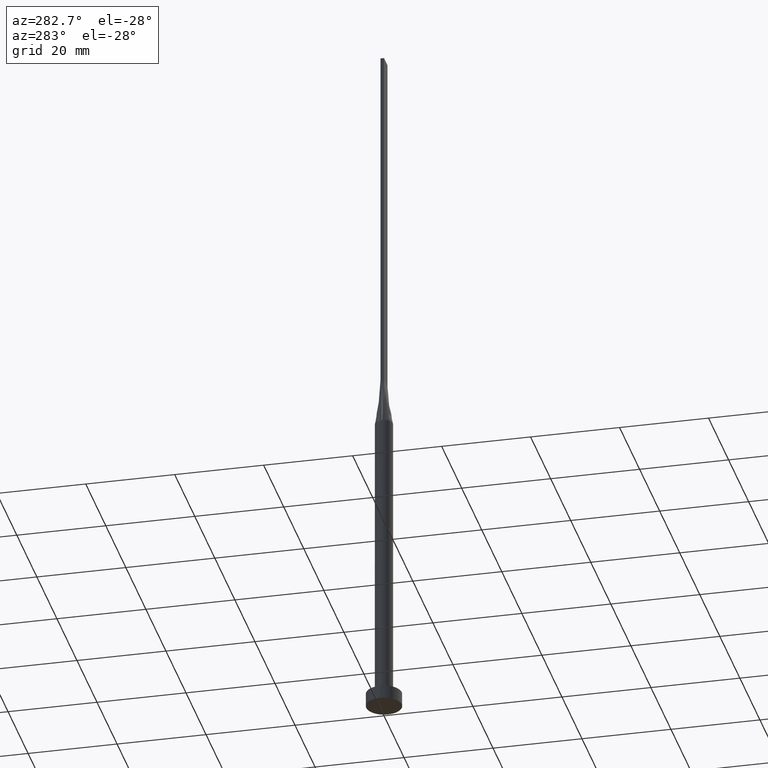
[diagram: clean part render]
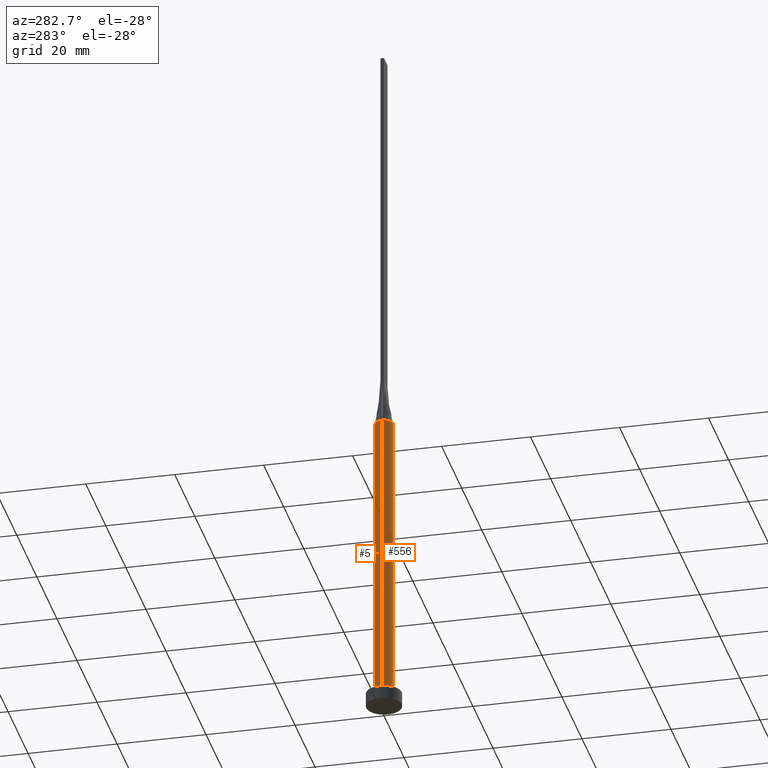
[diagram: same view with one multi-face feature highlighted, each face labeled with its STEP entity id]
A machine part, auxiliary view. The highlighted faces form ONE feature: a constant-radius fillet chain: 2 tangent blend faces with common blend radius 2 mm. The faces share edges in the B-rep.
Their STEP definitions:
[1] entity #5 (Cylinder):
#2 = DIRECTION ( 'NONE',  ( 1.000000000000000000, 0.000000000000000000, 0.000000000000000000 ) ) ;
#5 = ADVANCED_FACE ( 'NONE', ( #320 ), #195, .T. ) ;
#6 = EDGE_CURVE ( 'NONE', #53, #36, #255, .T. ) ;
#11 = LINE ( 'NONE', #559, #203 ) ;
#12 = EDGE_CURVE ( 'NONE', #16, #36, #151, .T. ) ;
#13 = DIRECTION ( 'NONE',  ( -0.000000000000000000, -0.000000000000000000, -1.000000000000000000 ) ) ;
#16 = VERTEX_POINT ( 'NONE', #97 ) ;
#23 = VERTEX_POINT ( 'NONE', #363 ) ;
#36 = VERTEX_POINT ( 'NONE', #535 ) ;
#44 = CARTESIAN_POINT ( 'NONE',  ( 1.209404336647714073, 1.609323485403446830, 70.00000000000001421 ) ) ;
#49 = CARTESIAN_POINT ( 'NONE',  ( 1.949877516600953875, 0.4456865912299994847, 70.00000000000000000 ) ) ;
#52 = DIRECTION ( 'NONE',  ( -0.000000000000000000, -0.000000000000000000, -1.000000000000000000 ) ) ;
#53 = VERTEX_POINT ( 'NONE', #566 ) ;
#57 = CARTESIAN_POINT ( 'NONE',  ( -1.669156890509896796, 1.119033439449084399, 70.00000000000001421 ) ) ;
#69 = ORIENTED_EDGE ( 'NONE', *, *, #6, .T. ) ;
#75 = EDGE_LOOP ( 'NONE', ( #420, #230, #69, #544, #271, #176 ) ) ;
#85 = CARTESIAN_POINT ( 'NONE',  ( 1.542259513637948443, 1.293837904363074998, 70.00000000000000000 ) ) ;
#97 = CARTESIAN_POINT ( 'NONE',  ( -1.999683952654101704, -4.787247324473225831E-16, 70.00000000000000000 ) ) ;
#102 = CARTESIAN_POINT ( 'NONE',  ( 0.000000000000000000, 0.000000000000000000, 70.00000000000000000 ) ) ;
#104 = CIRCLE ( 'NONE', #520, 2.000000000000000000 ) ;
#107 = CARTESIAN_POINT ( 'NONE',  ( -2.000000000000000000, 0.000000000000000000, 70.00000000000000000 ) ) ;
#116 = EDGE_CURVE ( 'NONE', #505, #23, #516, .T. ) ;
#139 = DIRECTION ( 'NONE',  ( 0.000000000000000000, 0.000000000000000000, 1.000000000000000000 ) ) ;
#150 = CARTESIAN_POINT ( 'NONE',  ( -1.209404336647713851, 1.609323485403446830, 70.00000000000001421 ) ) ;
#151 = LINE ( 'NONE', #107, #514 ) ;
#156 = CARTESIAN_POINT ( 'NONE',  ( -1.949896596863728293, 0.4456908869437610776, 70.00000000000000000 ) ) ;
#176 = ORIENTED_EDGE ( 'NONE', *, *, #116, .F. ) ;
#189 = CARTESIAN_POINT ( 'NONE',  ( 0.000000000000000000, 0.000000000000000000, 3.000000000000000000 ) ) ;
#195 = CYLINDRICAL_SURFACE ( 'NONE', #503, 2.000000000000000000 ) ;
#203 = VECTOR ( 'NONE', #414, 1000.000000000000000 ) ;
#216 = CARTESIAN_POINT ( 'NONE',  ( 1.999683952654101260, 4.637163118916083254E-16, 70.00000000000000000 ) ) ;
#220 = CARTESIAN_POINT ( 'NONE',  ( -0.5307032259479420588, 1.945168061822314609, 70.00000000000001421 ) ) ;
#225 = DIRECTION ( 'NONE',  ( 0.000000000000000000, 0.000000000000000000, 1.000000000000000000 ) ) ;
#227 = VERTEX_POINT ( 'NONE', #216 ) ;
#230 = ORIENTED_EDGE ( 'NONE', *, *, #561, .T. ) ;
#235 = CARTESIAN_POINT ( 'NONE',  ( 1.913513237607142647, 0.6040411209768705714, 70.00000000000001421 ) ) ;
#241 = CARTESIAN_POINT ( 'NONE',  ( -1.913513237607142647, 0.6040411209768712375, 70.00000000000001421 ) ) ;
#255 = CIRCLE ( 'NONE', #376, 2.000000000000000000 ) ;
#271 = ORIENTED_EDGE ( 'NONE', *, *, #329, .F. ) ;
#290 = CARTESIAN_POINT ( 'NONE',  ( 1.949877516600953875, 0.4456865912299994847, 70.00000000000000000 ) ) ;
#298 = EDGE_CURVE ( 'NONE', #227, #505, #104, .T. ) ;
#320 = FACE_OUTER_BOUND ( 'NONE', #75, .T. ) ;
#324 = CARTESIAN_POINT ( 'NONE',  ( -1.542259513637947999, 1.293837904363075442, 70.00000000000001421 ) ) ;
#327 = CARTESIAN_POINT ( 'NONE',  ( -1.854458107241758746, 0.7741483657718513101, 70.00000000000001421 ) ) ;
#329 = EDGE_CURVE ( 'NONE', #23, #16, #468, .T. ) ;
#356 = CARTESIAN_POINT ( 'NONE',  ( 0.5307032259479425029, 1.945168061822314165, 70.00000000000001421 ) ) ;
#362 = CARTESIAN_POINT ( 'NONE',  ( 1.669156890509896352, 1.119033439449084177, 70.00000000000000000 ) ) ;
#363 = CARTESIAN_POINT ( 'NONE',  ( -1.949896596863728293, 0.4456908869437610776, 70.00000000000000000 ) ) ;
#364 = AXIS2_PLACEMENT_3D ( 'NONE', #580, #225, #2 ) ;
#372 = DIRECTION ( 'NONE',  ( -1.000000000000000000, 0.000000000000000000, 0.000000000000000000 ) ) ;
#376 = AXIS2_PLACEMENT_3D ( 'NONE', #189, #554, #557 ) ;
#400 = CARTESIAN_POINT ( 'NONE',  ( 1.002818635501954603, 1.749193953526918088, 70.00000000000000000 ) ) ;
#408 = CARTESIAN_POINT ( 'NONE',  ( 1.854458107241759190, 0.7741483657718509770, 70.00000000000000000 ) ) ;
#414 = DIRECTION ( 'NONE',  ( -0.000000000000000000, -0.000000000000000000, -1.000000000000000000 ) ) ;
#420 = ORIENTED_EDGE ( 'NONE', *, *, #298, .F. ) ;
#443 = CARTESIAN_POINT ( 'NONE',  ( -0.2657394870669756437, 1.999999999999999556, 70.00000000000001421 ) ) ;
#454 = CARTESIAN_POINT ( 'NONE',  ( -1.002818635501954381, 1.749193953526918532, 70.00000000000001421 ) ) ;
#468 = CIRCLE ( 'NONE', #364, 2.000000000000000000 ) ;
#489 = DIRECTION ( 'NONE',  ( 1.000000000000000000, 0.000000000000000000, 0.000000000000000000 ) ) ;
#503 = AXIS2_PLACEMENT_3D ( 'NONE', #102, #13, #372 ) ;
#505 = VERTEX_POINT ( 'NONE', #290 ) ;
#514 = VECTOR ( 'NONE', #52, 1000.000000000000000 ) ;
#516 = B_SPLINE_CURVE_WITH_KNOTS ( 'NONE', 3,
 ( #49, #235, #408, #362, #85, #44, #400, #356, #539, #443, #220, #454, #150, #324, #57, #327, #241, #156 ),
 .UNSPECIFIED., .F., .F.,
 ( 4, 2, 2, 2, 2, 2, 2, 2, 4 ),
 ( 0.000000000000000000, 0.1250000000000000000, 0.2500000000000000000, 0.3750000000000000000, 0.5000000000000000000, 0.6250000000000000000, 0.7500000000000000000, 0.8750000000000000000, 1.000000000000000000 ),
 .UNSPECIFIED. ) ;
#520 = AXIS2_PLACEMENT_3D ( 'NONE', #537, #139, #489 ) ;
#535 = CARTESIAN_POINT ( 'NONE',  ( -2.000000000000000000, 0.000000000000000000, 3.000000000000000000 ) ) ;
#537 = CARTESIAN_POINT ( 'NONE',  ( 0.000000000000000000, 0.000000000000000000, 70.00000000000000000 ) ) ;
#539 = CARTESIAN_POINT ( 'NONE',  ( 0.2657394870669761988, 1.999999999999999556, 70.00000000000000000 ) ) ;
#544 = ORIENTED_EDGE ( 'NONE', *, *, #12, .F. ) ;
#554 = DIRECTION ( 'NONE',  ( 0.000000000000000000, 0.000000000000000000, 1.000000000000000000 ) ) ;
#557 = DIRECTION ( 'NONE',  ( 1.000000000000000000, 0.000000000000000000, 0.000000000000000000 ) ) ;
#559 = CARTESIAN_POINT ( 'NONE',  ( 2.000000000000000000, 2.449293598294706414E-16, 70.00000000000000000 ) ) ;
#561 = EDGE_CURVE ( 'NONE', #227, #53, #11, .T. ) ;
#566 = CARTESIAN_POINT ( 'NONE',  ( 2.000000000000000000, 2.449293598294706414E-16, 3.000000000000000000 ) ) ;
#580 = CARTESIAN_POINT ( 'NONE',  ( 0.000000000000000000, 0.000000000000000000, 70.00000000000000000 ) ) ;
[2] entity #556 (Cylinder):
#4 = CARTESIAN_POINT ( 'NONE',  ( 0.000000000000000000, 0.000000000000000000, 3.000000000000000000 ) ) ;
#11 = LINE ( 'NONE', #559, #203 ) ;
#12 = EDGE_CURVE ( 'NONE', #16, #36, #151, .T. ) ;
#16 = VERTEX_POINT ( 'NONE', #97 ) ;
#21 = CIRCLE ( 'NONE', #349, 2.000000000000000000 ) ;
#25 = AXIS2_PLACEMENT_3D ( 'NONE', #4, #93, #181 ) ;
#36 = VERTEX_POINT ( 'NONE', #535 ) ;
#52 = DIRECTION ( 'NONE',  ( -0.000000000000000000, -0.000000000000000000, -1.000000000000000000 ) ) ;
#53 = VERTEX_POINT ( 'NONE', #566 ) ;
#54 = AXIS2_PLACEMENT_3D ( 'NONE', #133, #229, #436 ) ;
#62 = DIRECTION ( 'NONE',  ( 1.000000000000000000, 0.000000000000000000, 0.000000000000000000 ) ) ;
#68 = DIRECTION ( 'NONE',  ( 0.000000000000000000, 0.000000000000000000, 1.000000000000000000 ) ) ;
#84 = ORIENTED_EDGE ( 'NONE', *, *, #441, .F. ) ;
#93 = DIRECTION ( 'NONE',  ( 0.000000000000000000, 0.000000000000000000, 1.000000000000000000 ) ) ;
#94 = EDGE_CURVE ( 'NONE', #297, #316, #21, .T. ) ;
#97 = CARTESIAN_POINT ( 'NONE',  ( -1.999683952654101704, -4.787247324473225831E-16, 70.00000000000000000 ) ) ;
#101 = CIRCLE ( 'NONE', #541, 2.000000000000000000 ) ;
#107 = CARTESIAN_POINT ( 'NONE',  ( -2.000000000000000000, 0.000000000000000000, 70.00000000000000000 ) ) ;
#111 = CARTESIAN_POINT ( 'NONE',  ( 0.000000000000000000, 0.000000000000000000, 70.00000000000000000 ) ) ;
#133 = CARTESIAN_POINT ( 'NONE',  ( 0.000000000000000000, 0.000000000000000000, 70.00000000000000000 ) ) ;
#146 = ORIENTED_EDGE ( 'NONE', *, *, #345, .F. ) ;
#151 = LINE ( 'NONE', #107, #514 ) ;
#181 = DIRECTION ( 'NONE',  ( 1.000000000000000000, 0.000000000000000000, 0.000000000000000000 ) ) ;
#185 = ORIENTED_EDGE ( 'NONE', *, *, #12, .T. ) ;
#203 = VECTOR ( 'NONE', #414, 1000.000000000000000 ) ;
#215 = CIRCLE ( 'NONE', #54, 2.000000000000000000 ) ;
#216 = CARTESIAN_POINT ( 'NONE',  ( 1.999683952654101260, 4.637163118916083254E-16, 70.00000000000000000 ) ) ;
#227 = VERTEX_POINT ( 'NONE', #216 ) ;
#229 = DIRECTION ( 'NONE',  ( 0.000000000000000000, 0.000000000000000000, 1.000000000000000000 ) ) ;
#240 = FACE_OUTER_BOUND ( 'NONE', #460, .T. ) ;
#254 = ORIENTED_EDGE ( 'NONE', *, *, #561, .F. ) ;
#278 = ORIENTED_EDGE ( 'NONE', *, *, #94, .F. ) ;
#291 = CYLINDRICAL_SURFACE ( 'NONE', #515, 2.000000000000000000 ) ;
#293 = EDGE_CURVE ( 'NONE', #36, #53, #532, .T. ) ;
#297 = VERTEX_POINT ( 'NONE', #354 ) ;
#316 = VERTEX_POINT ( 'NONE', #348 ) ;
#323 = DIRECTION ( 'NONE',  ( -0.000000000000000000, -0.000000000000000000, -1.000000000000000000 ) ) ;
#345 = EDGE_CURVE ( 'NONE', #16, #297, #215, .T. ) ;
#348 = CARTESIAN_POINT ( 'NONE',  ( 1.949907982895221048, -0.4456935569447296186, 70.00000000000000000 ) ) ;
#349 = AXIS2_PLACEMENT_3D ( 'NONE', #375, #68, #62 ) ;
#354 = CARTESIAN_POINT ( 'NONE',  ( -1.949888833174281633, -0.4456892479726881628, 70.00000000000000000 ) ) ;
#368 = ORIENTED_EDGE ( 'NONE', *, *, #293, .T. ) ;
#375 = CARTESIAN_POINT ( 'NONE',  ( 0.000000000000000000, 0.000000000000000000, 70.00000000000000000 ) ) ;
#388 = DIRECTION ( 'NONE',  ( 1.000000000000000000, -9.769962616701377556E-15, 0.000000000000000000 ) ) ;
#401 = DIRECTION ( 'NONE',  ( 0.000000000000000000, 0.000000000000000000, 1.000000000000000000 ) ) ;
#414 = DIRECTION ( 'NONE',  ( -0.000000000000000000, -0.000000000000000000, -1.000000000000000000 ) ) ;
#436 = DIRECTION ( 'NONE',  ( 1.000000000000000000, 0.000000000000000000, 0.000000000000000000 ) ) ;
#441 = EDGE_CURVE ( 'NONE', #316, #227, #101, .T. ) ;
#460 = EDGE_LOOP ( 'NONE', ( #254, #84, #278, #146, #185, #368 ) ) ;
#506 = DIRECTION ( 'NONE',  ( -1.000000000000000000, 0.000000000000000000, 0.000000000000000000 ) ) ;
#514 = VECTOR ( 'NONE', #52, 1000.000000000000000 ) ;
#515 = AXIS2_PLACEMENT_3D ( 'NONE', #111, #323, #506 ) ;
#532 = CIRCLE ( 'NONE', #25, 2.000000000000000000 ) ;
#535 = CARTESIAN_POINT ( 'NONE',  ( -2.000000000000000000, 0.000000000000000000, 3.000000000000000000 ) ) ;
#541 = AXIS2_PLACEMENT_3D ( 'NONE', #574, #401, #388 ) ;
#556 = ADVANCED_FACE ( 'NONE', ( #240 ), #291, .T. ) ;
#559 = CARTESIAN_POINT ( 'NONE',  ( 2.000000000000000000, 2.449293598294706414E-16, 70.00000000000000000 ) ) ;
#561 = EDGE_CURVE ( 'NONE', #227, #53, #11, .T. ) ;
#566 = CARTESIAN_POINT ( 'NONE',  ( 2.000000000000000000, 2.449293598294706414E-16, 3.000000000000000000 ) ) ;
#574 = CARTESIAN_POINT ( 'NONE',  ( 0.000000000000000000, 0.000000000000000000, 70.00000000000000000 ) ) ;